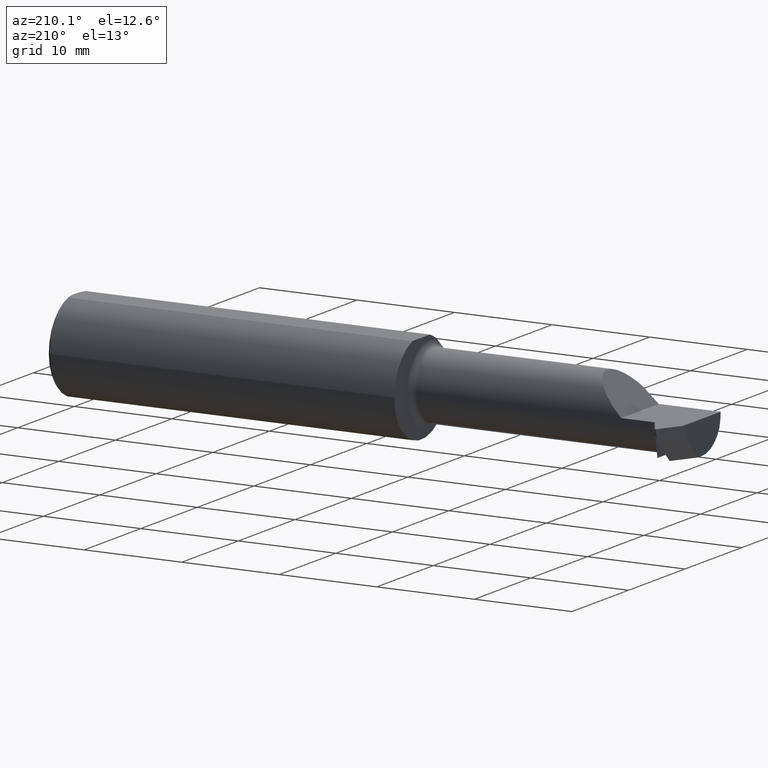
[diagram: clean part render]
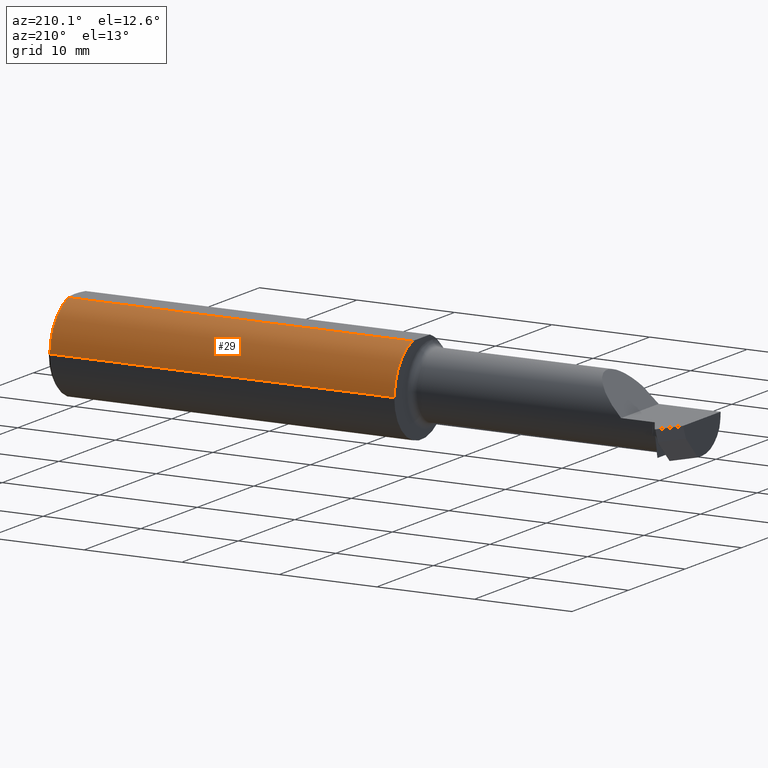
[diagram: same view with one face highlighted and labeled with its STEP entity id]
A machine part, auxiliary view. The second image highlights one B-rep face of the part: STEP entity #29.
In plain terms, the highlighted cylindrical surface (partial cylindrical patch) has radius 4.7587 mm, axis along (1, 0, -0).
Its self-contained STEP definition (entity closure, byte-faithful):
#29 = ADVANCED_FACE ( 'NONE', ( #626 ), #687, .T. ) ;
#48 = CARTESIAN_POINT ( 'NONE',  ( -0.009999999999999096417, 0.1873500000000002941, 0.000000000000000000 ) ) ;
#50 = VERTEX_POINT ( 'NONE', #483 ) ;
#57 = AXIS2_PLACEMENT_3D ( 'NONE', #622, #89, #561 ) ;
#58 = VECTOR ( 'NONE', #67, 39.37007874015748143 ) ;
#67 = DIRECTION ( 'NONE',  ( -1.000000000000000000, -1.224646799147352961E-16, 0.000000000000000000 ) ) ;
#87 = EDGE_CURVE ( 'NONE', #122, #50, #354, .T. ) ;
#89 = DIRECTION ( 'NONE',  ( 1.000000000000000000, 1.224646799147352961E-16, -0.000000000000000000 ) ) ;
#100 = DIRECTION ( 'NONE',  ( 1.000000000000000000, 1.224646799147352961E-16, -0.000000000000000000 ) ) ;
#103 = CARTESIAN_POINT ( 'NONE',  ( -2.500000000000000000, 0.06039039658753648371, 0.1773500000000000909 ) ) ;
#108 = CARTESIAN_POINT ( 'NONE',  ( -2.500000000000000000, 0.1873499999999999888, 0.000000000000000000 ) ) ;
#122 = VERTEX_POINT ( 'NONE', #181 ) ;
#166 = VECTOR ( 'NONE', #100, 39.37007874015748143 ) ;
#181 = CARTESIAN_POINT ( 'NONE',  ( -1.399999999999999911, 0.1873500000000001275, 0.000000000000000000 ) ) ;
#192 = CARTESIAN_POINT ( 'NONE',  ( -0.009999999999999073866, 3.661693929450587103E-16, 0.000000000000000000 ) ) ;
#225 = VERTEX_POINT ( 'NONE', #48 ) ;
#295 = ORIENTED_EDGE ( 'NONE', *, *, #548, .F. ) ;
#354 = CIRCLE ( 'NONE', #873, 0.1873499999999999055 ) ;
#355 = AXIS2_PLACEMENT_3D ( 'NONE', #192, #868, #724 ) ;
#427 = DIRECTION ( 'NONE',  ( 1.000000000000000000, -9.108622265535208572E-17, 0.000000000000000000 ) ) ;
#429 = ORIENTED_EDGE ( 'NONE', *, *, #470, .F. ) ;
#470 = EDGE_CURVE ( 'NONE', #122, #225, #702, .T. ) ;
#483 = CARTESIAN_POINT ( 'NONE',  ( -1.399999999999999911, 0.06039039658753678902, 0.1773500000000000909 ) ) ;
#541 = ORIENTED_EDGE ( 'NONE', *, *, #680, .T. ) ;
#548 = EDGE_CURVE ( 'NONE', #591, #50, #698, .T. ) ;
#561 = DIRECTION ( 'NONE',  ( 0.000000000000000000, 1.000000000000000000, 0.000000000000000000 ) ) ;
#572 = EDGE_LOOP ( 'NONE', ( #429, #763, #295, #541 ) ) ;
#591 = VERTEX_POINT ( 'NONE', #597 ) ;
#597 = CARTESIAN_POINT ( 'NONE',  ( -0.009999999999999073866, 0.06039039658753679596, 0.1773500000000000909 ) ) ;
#622 = CARTESIAN_POINT ( 'NONE',  ( -2.500000000000000000, 6.123233995736767268E-17, 0.000000000000000000 ) ) ;
#626 = FACE_OUTER_BOUND ( 'NONE', #572, .T. ) ;
#635 = CIRCLE ( 'NONE', #355, 0.1873499999999999055 ) ;
#680 = EDGE_CURVE ( 'NONE', #591, #225, #635, .T. ) ;
#684 = DIRECTION ( 'NONE',  ( 0.000000000000000000, -1.000000000000000000, 0.000000000000000000 ) ) ;
#687 = CYLINDRICAL_SURFACE ( 'NONE', #57, 0.1873499999999999055 ) ;
#698 = LINE ( 'NONE', #103, #58 ) ;
#702 = LINE ( 'NONE', #108, #166 ) ;
#724 = DIRECTION ( 'NONE',  ( -1.253099476677463101E-16, 1.000000000000000000, 8.881784197001252323E-16 ) ) ;
#752 = CARTESIAN_POINT ( 'NONE',  ( -1.399999999999999911, 1.959434878635765230E-16, 0.000000000000000000 ) ) ;
#763 = ORIENTED_EDGE ( 'NONE', *, *, #87, .T. ) ;
#868 = DIRECTION ( 'NONE',  ( -1.000000000000000000, -1.224646799147319927E-16, 0.000000000000000000 ) ) ;
#873 = AXIS2_PLACEMENT_3D ( 'NONE', #752, #427, #684 ) ;